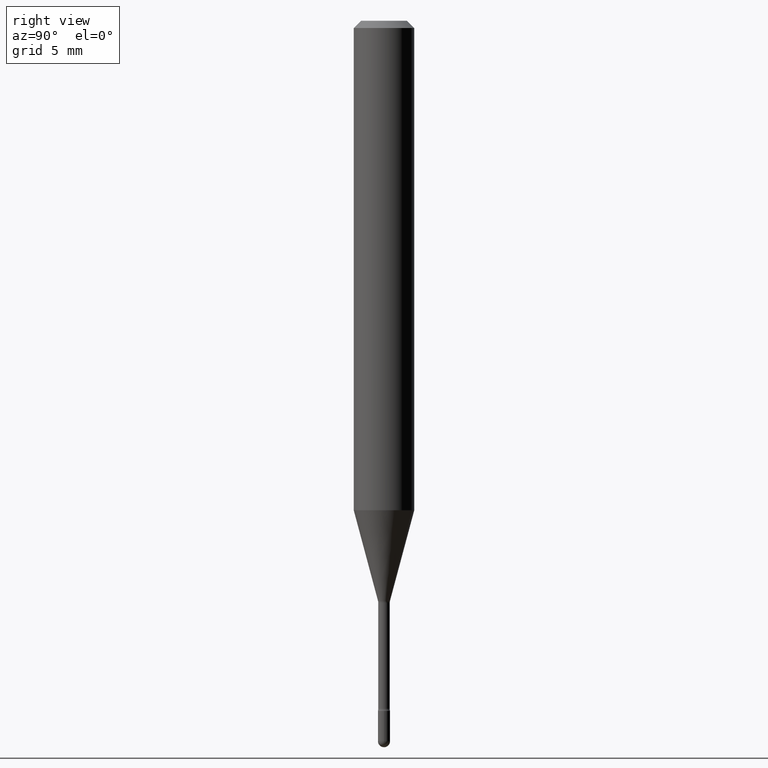
[diagram: clean part render]
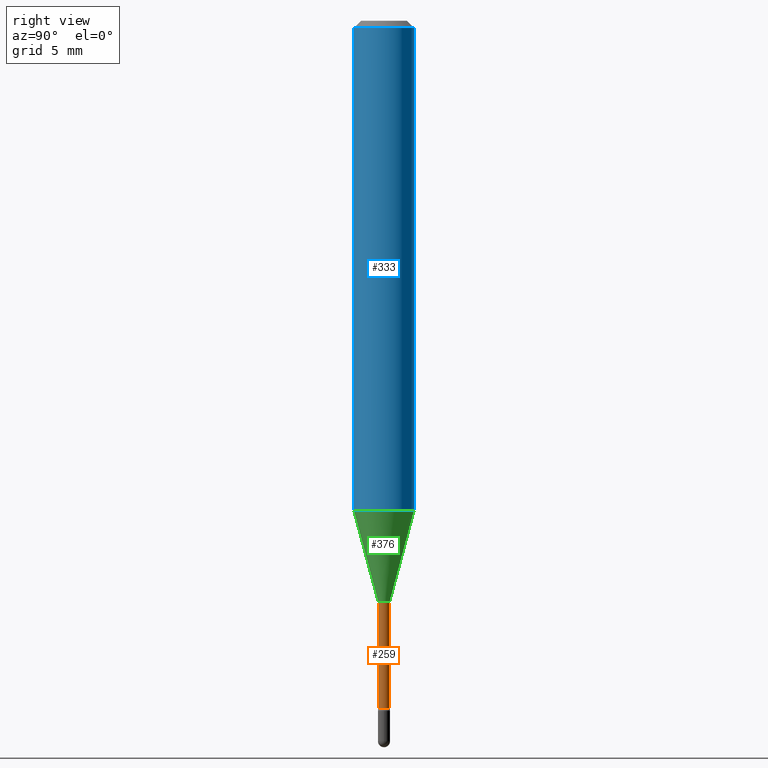
[diagram: same view with three faces highlighted in distinct colors, each labeled with its STEP entity id]
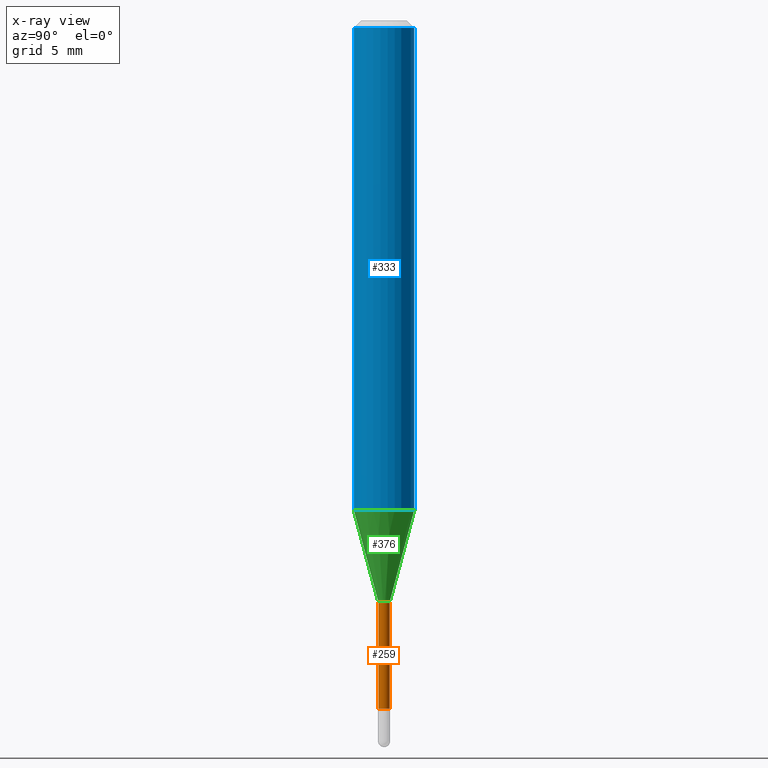
[diagram: x-ray of the same camera — body ghosted, the three highlighted faces saturated]
A machine part, right view with three faces highlighted in distinct colors.
The next image is the same camera in x-ray (body ghosted, the three faces saturated) — at least one of them is partly hidden behind the body in this view.
Their STEP definitions:

[orange] entity #259 — the highlighted cylindrical surface (edge-blend (fillet) strip) has radius 0.2985 mm, axis along (-0, 0, 1).
#14 = LINE ( 'NONE', #490, #492 ) ;
#19 = VERTEX_POINT ( 'NONE', #175 ) ;
#48 = VECTOR ( 'NONE', #384, 39.37007874015748143 ) ;
#61 = CARTESIAN_POINT ( 'NONE',  ( -8.204981146278427787E-17, -0.01175000000000420153, -1.201974787463810701 ) ) ;
#96 = AXIS2_PLACEMENT_3D ( 'NONE', #386, #562, #170 ) ;
#99 = VERTEX_POINT ( 'NONE', #230 ) ;
#110 = DIRECTION ( 'NONE',  ( -6.982962677686265133E-15, -1.000000000000000000, 3.491419153817589797E-15 ) ) ;
#144 = EDGE_CURVE ( 'NONE', #398, #99, #326, .T. ) ;
#147 = CIRCLE ( 'NONE', #96, 0.01175000000000000523 ) ;
#155 = ORIENTED_EDGE ( 'NONE', *, *, #544, .F. ) ;
#159 = EDGE_CURVE ( 'NONE', #99, #19, #14, .T. ) ;
#170 = DIRECTION ( 'NONE',  ( -6.982962677686265922E-15, -1.000000000000000000, 0.000000000000000000 ) ) ;
#175 = CARTESIAN_POINT ( 'NONE',  ( 8.348877145184664215E-17, 0.01174999999999580894, -1.201974787463810701 ) ) ;
#216 = CARTESIAN_POINT ( 'NONE',  ( -8.204981146281379852E-17, -0.01175000000000002605, 5.190975739486028693E-16 ) ) ;
#218 = EDGE_LOOP ( 'NONE', ( #475, #455, #420, #155 ) ) ;
#230 = CARTESIAN_POINT ( 'NONE',  ( 8.615330671094704487E-17, 0.01174999999999508729, -1.420316251501201554 ) ) ;
#259 = ADVANCED_FACE ( 'NONE', ( #371 ), #291, .T. ) ;
#265 = AXIS2_PLACEMENT_3D ( 'NONE', #357, #312, #528 ) ;
#289 = VERTEX_POINT ( 'NONE', #61 ) ;
#291 = CYLINDRICAL_SURFACE ( 'NONE', #425, 0.01175000000000002605 ) ;
#304 = DIRECTION ( 'NONE',  ( -2.445512229756394433E-29, 3.491419153817588613E-15, 1.000000000000000000 ) ) ;
#312 = DIRECTION ( 'NONE',  ( -2.445512229756394153E-29, 3.491419153817588613E-15, 1.000000000000000000 ) ) ;
#326 = CIRCLE ( 'NONE', #265, 0.01175000000000004513 ) ;
#330 = DIRECTION ( 'NONE',  ( -2.445512229756394153E-29, 3.491419153817588613E-15, 1.000000000000000000 ) ) ;
#332 = LINE ( 'NONE', #216, #48 ) ;
#357 = CARTESIAN_POINT ( 'NONE',  ( 3.473400763167947173E-29, -4.958919364969694174E-15, -1.420316251501201554 ) ) ;
#371 = FACE_OUTER_BOUND ( 'NONE', #218, .T. ) ;
#374 = CARTESIAN_POINT ( 'NONE',  ( -1.169113584055446105E-44, 1.669184350826100908E-30, 4.780733988912460139E-16 ) ) ;
#384 = DIRECTION ( 'NONE',  ( -2.445512229756394433E-29, 3.491419153817588613E-15, 1.000000000000000000 ) ) ;
#386 = CARTESIAN_POINT ( 'NONE',  ( 2.939444042601592123E-29, -4.196597795356974546E-15, -1.201974787463810701 ) ) ;
#398 = VERTEX_POINT ( 'NONE', #507 ) ;
#420 = ORIENTED_EDGE ( 'NONE', *, *, #549, .F. ) ;
#425 = AXIS2_PLACEMENT_3D ( 'NONE', #374, #330, #110 ) ;
#455 = ORIENTED_EDGE ( 'NONE', *, *, #159, .T. ) ;
#475 = ORIENTED_EDGE ( 'NONE', *, *, #144, .T. ) ;
#490 = CARTESIAN_POINT ( 'NONE',  ( 8.348877145181194460E-17, 0.01175000000000002605, 4.370492238338893065E-16 ) ) ;
#492 = VECTOR ( 'NONE', #304, 39.37007874015748143 ) ;
#507 = CARTESIAN_POINT ( 'NONE',  ( -8.204981146277921190E-17, -0.01175000000000500297, -1.420316251501201554 ) ) ;
#528 = DIRECTION ( 'NONE',  ( -6.982962677686266711E-15, -1.000000000000000000, 0.000000000000000000 ) ) ;
#544 = EDGE_CURVE ( 'NONE', #398, #289, #332, .T. ) ;
#549 = EDGE_CURVE ( 'NONE', #289, #19, #147, .T. ) ;
#562 = DIRECTION ( 'NONE',  ( -2.445512229756394153E-29, 3.491419153817588613E-15, 1.000000000000000000 ) ) ;

[blue] entity #333 — the highlighted cylindrical surface (edge-blend (fillet) strip) has radius 1.5875 mm, axis along (-0, 0, 1).
#20 = DIRECTION ( 'NONE',  ( -2.445512229756394433E-29, 3.491419153817588613E-15, 1.000000000000000000 ) ) ;
#21 = VERTEX_POINT ( 'NONE', #137 ) ;
#37 = DIRECTION ( 'NONE',  ( -6.982962677686265922E-15, -1.000000000000000000, 4.370956789862821150E-15 ) ) ;
#51 = CARTESIAN_POINT ( 'NONE',  ( 4.440892098500871695E-16, 0.06249999999999647504, -1.010598421515880085 ) ) ;
#79 = EDGE_CURVE ( 'NONE', #21, #164, #173, .T. ) ;
#80 = EDGE_CURVE ( 'NONE', #21, #489, #564, .T. ) ;
#93 = EDGE_LOOP ( 'NONE', ( #257, #150, #168, #100 ) ) ;
#98 = DIRECTION ( 'NONE',  ( -6.982962677686265922E-15, -1.000000000000000000, 3.483106191921935554E-15 ) ) ;
#100 = ORIENTED_EDGE ( 'NONE', *, *, #80, .F. ) ;
#105 = CARTESIAN_POINT ( 'NONE',  ( 3.668268344634611408E-31, -5.237128730726412034E-17, -0.01500000000000008271 ) ) ;
#137 = CARTESIAN_POINT ( 'NONE',  ( -4.364351673553669682E-16, -0.06250000000000353884, -1.010598421515879641 ) ) ;
#150 = ORIENTED_EDGE ( 'NONE', *, *, #262, .T. ) ;
#152 = VECTOR ( 'NONE', #20, 39.37007874015748143 ) ;
#156 = DIRECTION ( 'NONE',  ( -6.982962677686265922E-15, -1.000000000000000000, 3.491419153817587824E-15 ) ) ;
#164 = VERTEX_POINT ( 'NONE', #51 ) ;
#168 = ORIENTED_EDGE ( 'NONE', *, *, #302, .F. ) ;
#173 = CIRCLE ( 'NONE', #255, 0.06250000000000000000 ) ;
#180 = DIRECTION ( 'NONE',  ( -2.445512229756394433E-29, 3.491419153817588613E-15, 1.000000000000000000 ) ) ;
#197 = CYLINDRICAL_SURFACE ( 'NONE', #336, 0.06250000000000000000 ) ;
#252 = DIRECTION ( 'NONE',  ( -2.445512229756394153E-29, 3.491419153817588613E-15, 1.000000000000000000 ) ) ;
#255 = AXIS2_PLACEMENT_3D ( 'NONE', #323, #252, #37 ) ;
#257 = ORIENTED_EDGE ( 'NONE', *, *, #79, .T. ) ;
#262 = EDGE_CURVE ( 'NONE', #164, #509, #287, .T. ) ;
#287 = LINE ( 'NONE', #496, #152 ) ;
#302 = EDGE_CURVE ( 'NONE', #489, #509, #433, .T. ) ;
#317 = DIRECTION ( 'NONE',  ( -2.445512229756394153E-29, 3.491419153817588613E-15, 1.000000000000000000 ) ) ;
#323 = CARTESIAN_POINT ( 'NONE',  ( 2.471430799189591968E-29, -3.528422685698364125E-15, -1.010598421515879863 ) ) ;
#333 = ADVANCED_FACE ( 'NONE', ( #550 ), #197, .T. ) ;
#336 = AXIS2_PLACEMENT_3D ( 'NONE', #458, #448, #156 ) ;
#379 = CARTESIAN_POINT ( 'NONE',  ( 4.440892098500874653E-16, 0.06249999999999993755, -0.01500000000000030129 ) ) ;
#429 = CARTESIAN_POINT ( 'NONE',  ( -4.364351673553916201E-16, -0.06250000000000000000, 6.962870960048452529E-16 ) ) ;
#433 = CIRCLE ( 'NONE', #558, 0.06250000000000000000 ) ;
#448 = DIRECTION ( 'NONE',  ( -2.445512229756394153E-29, 3.491419153817588613E-15, 1.000000000000000000 ) ) ;
#458 = CARTESIAN_POINT ( 'NONE',  ( -1.169113584055446105E-44, 1.669184350826100908E-30, 4.780733988912460139E-16 ) ) ;
#472 = VECTOR ( 'NONE', #180, 39.37007874015748143 ) ;
#489 = VERTEX_POINT ( 'NONE', #560 ) ;
#496 = CARTESIAN_POINT ( 'NONE',  ( 4.440892098500625669E-16, 0.06250000000000000000, 2.598597017776467749E-16 ) ) ;
#509 = VERTEX_POINT ( 'NONE', #379 ) ;
#550 = FACE_OUTER_BOUND ( 'NONE', #93, .T. ) ;
#558 = AXIS2_PLACEMENT_3D ( 'NONE', #105, #317, #98 ) ;
#560 = CARTESIAN_POINT ( 'NONE',  ( -4.364351673553912750E-16, -0.06250000000000005551, -0.01499999999999986587 ) ) ;
#564 = LINE ( 'NONE', #429, #472 ) ;

[green] entity #376 — the highlighted conical surface has half-angle 15 deg.
#21 = VERTEX_POINT ( 'NONE', #137 ) ;
#27 = CONICAL_SURFACE ( 'NONE', #282, 0.01226111260566398360, 0.2617993877991499074 ) ;
#37 = DIRECTION ( 'NONE',  ( -6.982962677686265922E-15, -1.000000000000000000, 4.370956789862821150E-15 ) ) ;
#51 = CARTESIAN_POINT ( 'NONE',  ( 4.440892098500871695E-16, 0.06249999999999647504, -1.010598421515880085 ) ) ;
#60 = VERTEX_POINT ( 'NONE', #413 ) ;
#78 = LINE ( 'NONE', #565, #535 ) ;
#79 = EDGE_CURVE ( 'NONE', #21, #164, #173, .T. ) ;
#122 = DIRECTION ( 'NONE',  ( -1.807323732225327773E-15, -0.2588190451025178529, 0.9659258262890690894 ) ) ;
#137 = CARTESIAN_POINT ( 'NONE',  ( -4.364351673553669682E-16, -0.06250000000000353884, -1.010598421515879641 ) ) ;
#148 = DIRECTION ( 'NONE',  ( -2.445512229756394153E-29, 3.491419153817588613E-15, 1.000000000000000000 ) ) ;
#163 = VECTOR ( 'NONE', #322, 39.37007874015748854 ) ;
#164 = VERTEX_POINT ( 'NONE', #51 ) ;
#173 = CIRCLE ( 'NONE', #255, 0.06250000000000000000 ) ;
#192 = CARTESIAN_POINT ( 'NONE',  ( -8.561889171223090403E-17, -0.01226111260566816602, -1.198092501787273223 ) ) ;
#203 = CIRCLE ( 'NONE', #247, 0.01226111260566398360 ) ;
#240 = EDGE_CURVE ( 'NONE', #253, #60, #203, .T. ) ;
#247 = AXIS2_PLACEMENT_3D ( 'NONE', #548, #319, #499 ) ;
#252 = DIRECTION ( 'NONE',  ( -2.445512229756394153E-29, 3.491419153817588613E-15, 1.000000000000000000 ) ) ;
#253 = VERTEX_POINT ( 'NONE', #192 ) ;
#255 = AXIS2_PLACEMENT_3D ( 'NONE', #323, #252, #37 ) ;
#282 = AXIS2_PLACEMENT_3D ( 'NONE', #545, #148, #372 ) ;
#286 = ORIENTED_EDGE ( 'NONE', *, *, #563, .F. ) ;
#306 = EDGE_CURVE ( 'NONE', #60, #164, #452, .T. ) ;
#319 = DIRECTION ( 'NONE',  ( -2.445512229756394153E-29, 3.491419153817588613E-15, 1.000000000000000000 ) ) ;
#322 = DIRECTION ( 'NONE',  ( 1.839019923739597554E-15, 0.2588190451025245697, 0.9659258262890670910 ) ) ;
#323 = CARTESIAN_POINT ( 'NONE',  ( 2.471430799189591968E-29, -3.528422685698364125E-15, -1.010598421515879863 ) ) ;
#365 = CARTESIAN_POINT ( 'NONE',  ( 8.712044494294066016E-17, 0.01226111260565980118, -1.198092501787273223 ) ) ;
#372 = DIRECTION ( 'NONE',  ( -6.982962677686265922E-15, -1.000000000000000000, 0.000000000000000000 ) ) ;
#376 = ADVANCED_FACE ( 'NONE', ( #547 ), #27, .T. ) ;
#413 = CARTESIAN_POINT ( 'NONE',  ( 2.656048273965141059E-16, 0.01226111260565980292, -1.198092501787273223 ) ) ;
#422 = ORIENTED_EDGE ( 'NONE', *, *, #240, .T. ) ;
#452 = LINE ( 'NONE', #365, #163 ) ;
#485 = ORIENTED_EDGE ( 'NONE', *, *, #79, .F. ) ;
#499 = DIRECTION ( 'NONE',  ( -6.982962677686265922E-15, -1.000000000000000000, 0.000000000000000000 ) ) ;
#500 = EDGE_LOOP ( 'NONE', ( #422, #505, #485, #286 ) ) ;
#505 = ORIENTED_EDGE ( 'NONE', *, *, #306, .T. ) ;
#535 = VECTOR ( 'NONE', #122, 39.37007874015748143 ) ;
#545 = CARTESIAN_POINT ( 'NONE',  ( 2.929949865500210976E-29, -4.183043108785318742E-15, -1.198092501787273223 ) ) ;
#547 = FACE_OUTER_BOUND ( 'NONE', #500, .T. ) ;
#548 = CARTESIAN_POINT ( 'NONE',  ( 2.929949865500210976E-29, -4.183043108785318742E-15, -1.198092501787273223 ) ) ;
#563 = EDGE_CURVE ( 'NONE', #253, #21, #78, .T. ) ;
#565 = CARTESIAN_POINT ( 'NONE',  ( -8.561889171223090403E-17, -0.01226111260566816602, -1.198092501787273223 ) ) ;